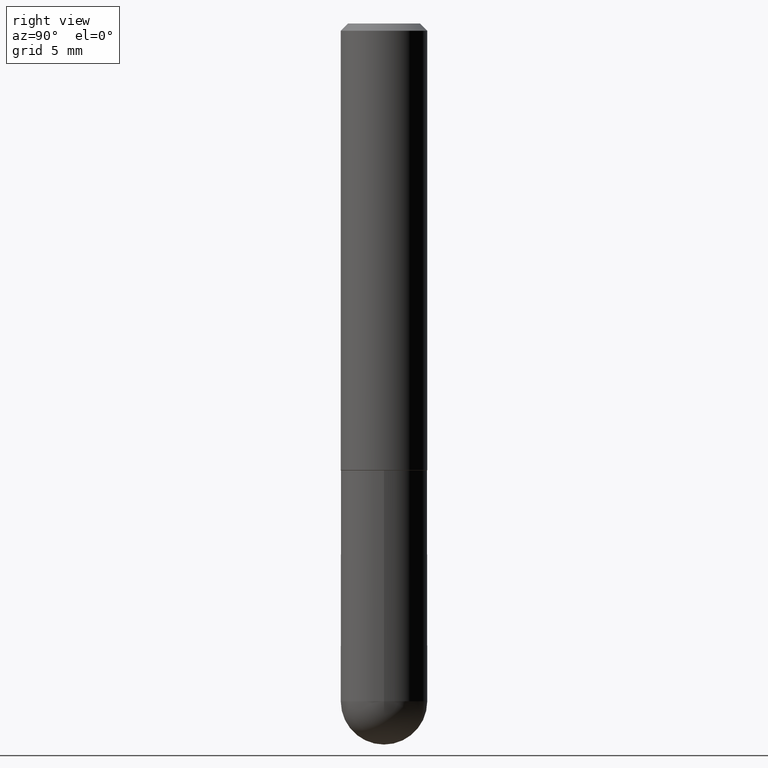
[diagram: clean part render]
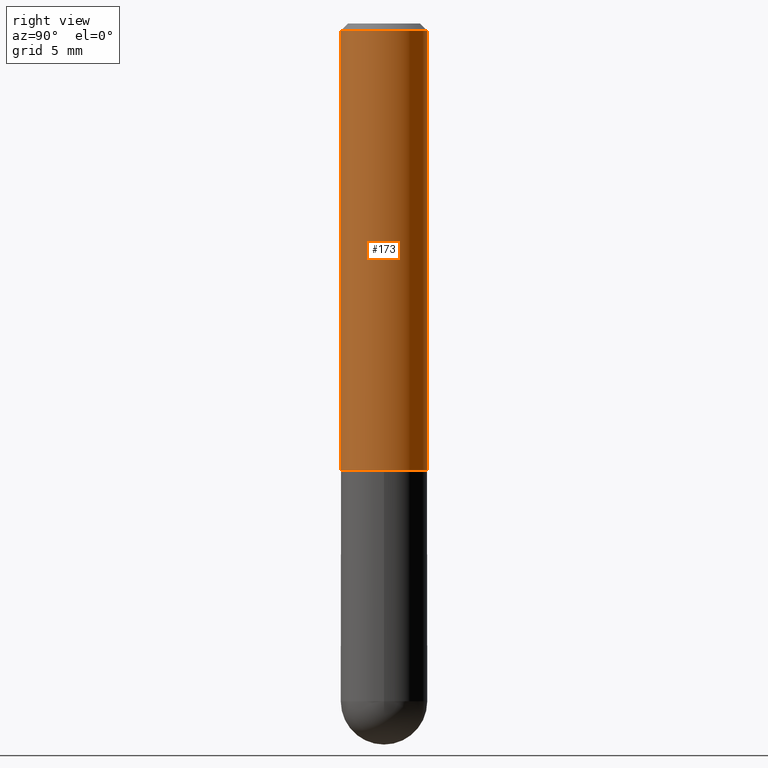
[diagram: same view with one face highlighted and labeled with its STEP entity id]
A machine part, right view. The second image highlights one B-rep face of the part: STEP entity #173.
In plain terms, the highlighted cylindrical surface (partial cylindrical patch) has radius 2.9997 mm, axis along (-0, 0, 1).
Its self-contained STEP definition (entity closure, byte-faithful):
#8 = EDGE_LOOP ( 'NONE', ( #136, #338, #405, #237 ) ) ;
#25 = AXIS2_PLACEMENT_3D ( 'NONE', #232, #69, #106 ) ;
#28 = EDGE_CURVE ( 'NONE', #247, #198, #192, .T. ) ;
#39 = DIRECTION ( 'NONE',  ( -6.982962677686265922E-15, -1.000000000000000000, 3.469747663417772269E-15 ) ) ;
#53 = CYLINDRICAL_SURFACE ( 'NONE', #25, 0.1181000000000000799 ) ;
#62 = VECTOR ( 'NONE', #328, 39.37007874015748143 ) ;
#69 = DIRECTION ( 'NONE',  ( -2.446608497721967489E-29, 3.489849235695189824E-15, 1.000000000000000000 ) ) ;
#73 = CARTESIAN_POINT ( 'NONE',  ( 8.391509709326787887E-16, 0.1181000000000000799, -4.121511947356022073E-16 ) ) ;
#95 = CARTESIAN_POINT ( 'NONE',  ( 4.893216995443941564E-31, -6.979698471390387290E-17, -0.02000000000000002470 ) ) ;
#106 = DIRECTION ( 'NONE',  ( -6.982962677686265922E-15, -1.000000000000000000, 3.489849235695189824E-15 ) ) ;
#112 = CARTESIAN_POINT ( 'NONE',  ( -8.246878922347485584E-16, -0.1181000000000000799, 4.121511947356022073E-16 ) ) ;
#120 = AXIS2_PLACEMENT_3D ( 'NONE', #95, #386, #223 ) ;
#124 = CARTESIAN_POINT ( 'NONE',  ( -8.246878922347193706E-16, -0.1181000000000044237, -1.219499999999999584 ) ) ;
#128 = CARTESIAN_POINT ( 'NONE',  ( 8.246878922347484598E-16, 0.1180999999999999273, -0.02000000000000044104 ) ) ;
#136 = ORIENTED_EDGE ( 'NONE', *, *, #28, .T. ) ;
#143 = DIRECTION ( 'NONE',  ( -2.446608497721967489E-29, 3.489849235695189824E-15, 1.000000000000000000 ) ) ;
#152 = AXIS2_PLACEMENT_3D ( 'NONE', #353, #200, #39 ) ;
#173 = ADVANCED_FACE ( 'NONE', ( #390 ), #53, .T. ) ;
#183 = EDGE_CURVE ( 'NONE', #198, #369, #267, .T. ) ;
#188 = CARTESIAN_POINT ( 'NONE',  ( -8.102248135368172434E-16, -0.1181000000000000660, -0.01999999999999961184 ) ) ;
#192 = CIRCLE ( 'NONE', #152, 0.1181000000000001632 ) ;
#198 = VERTEX_POINT ( 'NONE', #202 ) ;
#200 = DIRECTION ( 'NONE',  ( -2.446608497721967489E-29, 3.489849235695189824E-15, 1.000000000000000000 ) ) ;
#202 = CARTESIAN_POINT ( 'NONE',  ( 8.391509709326943687E-16, 0.1180999999999959166, -1.219500000000000473 ) ) ;
#221 = CIRCLE ( 'NONE', #120, 0.1180999999999999966 ) ;
#223 = DIRECTION ( 'NONE',  ( -6.982962677686265922E-15, -1.000000000000000000, 3.505890868245046092E-15 ) ) ;
#232 = CARTESIAN_POINT ( 'NONE',  ( 0.000000000000000000, 0.000000000000000000, 0.000000000000000000 ) ) ;
#235 = VECTOR ( 'NONE', #143, 39.37007874015748143 ) ;
#237 = ORIENTED_EDGE ( 'NONE', *, *, #265, .F. ) ;
#240 = VERTEX_POINT ( 'NONE', #188 ) ;
#247 = VERTEX_POINT ( 'NONE', #124 ) ;
#265 = EDGE_CURVE ( 'NONE', #247, #240, #395, .T. ) ;
#267 = LINE ( 'NONE', #73, #62 ) ;
#314 = EDGE_CURVE ( 'NONE', #240, #369, #221, .T. ) ;
#328 = DIRECTION ( 'NONE',  ( -2.446608497721967489E-29, 3.489849235695189824E-15, 1.000000000000000000 ) ) ;
#338 = ORIENTED_EDGE ( 'NONE', *, *, #183, .T. ) ;
#353 = CARTESIAN_POINT ( 'NONE',  ( 2.983639062971939507E-29, -4.255871142930284635E-15, -1.219500000000000028 ) ) ;
#369 = VERTEX_POINT ( 'NONE', #128 ) ;
#386 = DIRECTION ( 'NONE',  ( -2.446608497721967489E-29, 3.489849235695189824E-15, 1.000000000000000000 ) ) ;
#390 = FACE_OUTER_BOUND ( 'NONE', #8, .T. ) ;
#395 = LINE ( 'NONE', #112, #235 ) ;
#405 = ORIENTED_EDGE ( 'NONE', *, *, #314, .F. ) ;